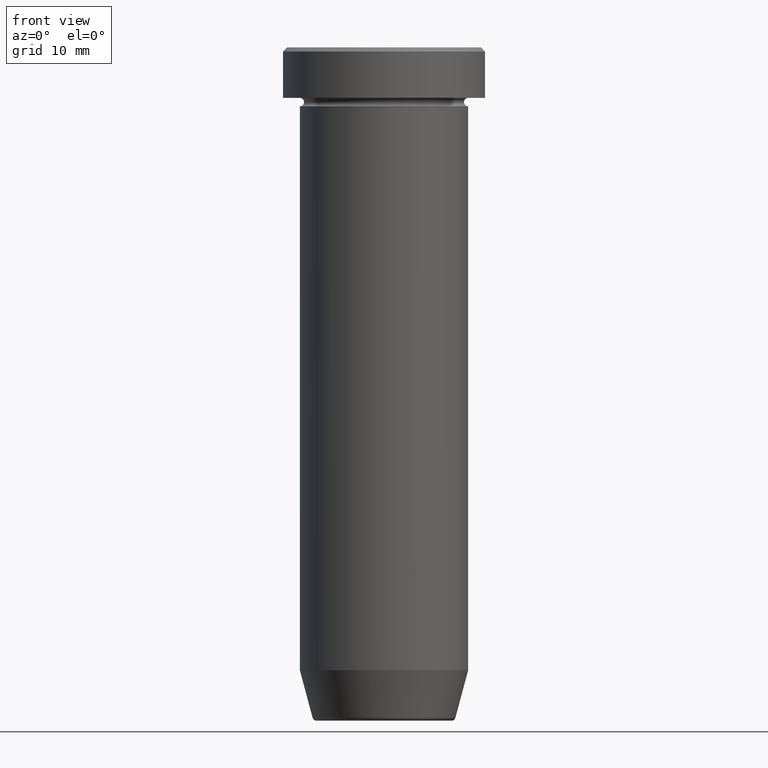
[diagram: clean part render]
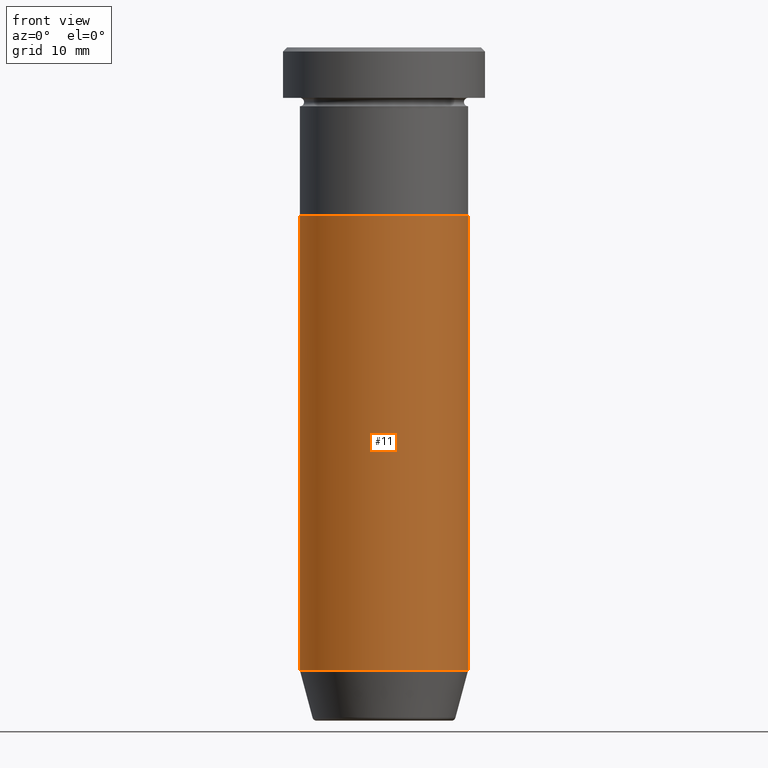
[diagram: same view with one face highlighted and labeled with its STEP entity id]
A machine part, front view. The second image highlights one B-rep face of the part: STEP entity #11.
In plain terms, the highlighted cylindrical surface (partial cylindrical patch) has radius 10 mm, axis along (-0, -0, 1).
Its self-contained STEP definition (entity closure, byte-faithful):
#3 = CARTESIAN_POINT ( 'NONE',  ( -9.999999999999998224, 1.224646799147353059E-15, 0.000000000000000000 ) ) ;
#10 = CARTESIAN_POINT ( 'NONE',  ( -9.999999999999998224, 1.224646799147353059E-15, -74.00000000000000000 ) ) ;
#11 = ADVANCED_FACE ( 'NONE', ( #256 ), #363, .T. ) ;
#13 = AXIS2_PLACEMENT_3D ( 'NONE', #532, #304, #534 ) ;
#42 = DIRECTION ( 'NONE',  ( -0.000000000000000000, -0.000000000000000000, 1.000000000000000000 ) ) ;
#44 = VECTOR ( 'NONE', #540, 1000.000000000000000 ) ;
#58 = EDGE_CURVE ( 'NONE', #580, #436, #470, .T. ) ;
#101 = CARTESIAN_POINT ( 'NONE',  ( 9.999999999999998224, 0.000000000000000000, -74.00000000000000000 ) ) ;
#127 = CARTESIAN_POINT ( 'NONE',  ( 9.999999999999998224, 0.000000000000000000, 0.000000000000000000 ) ) ;
#141 = DIRECTION ( 'NONE',  ( -0.000000000000000000, -0.000000000000000000, 1.000000000000000000 ) ) ;
#157 = EDGE_CURVE ( 'NONE', #400, #390, #563, .T. ) ;
#165 = LINE ( 'NONE', #127, #44 ) ;
#208 = DIRECTION ( 'NONE',  ( -0.000000000000000000, -0.000000000000000000, 1.000000000000000000 ) ) ;
#256 = FACE_OUTER_BOUND ( 'NONE', #399, .T. ) ;
#268 = CARTESIAN_POINT ( 'NONE',  ( -10.00000000000000000, 1.224646799147353256E-15, -20.00000000000000000 ) ) ;
#282 = LINE ( 'NONE', #3, #472 ) ;
#295 = ORIENTED_EDGE ( 'NONE', *, *, #387, .T. ) ;
#297 = ORIENTED_EDGE ( 'NONE', *, *, #157, .F. ) ;
#304 = DIRECTION ( 'NONE',  ( -0.000000000000000000, -0.000000000000000000, 1.000000000000000000 ) ) ;
#336 = AXIS2_PLACEMENT_3D ( 'NONE', #445, #42, #490 ) ;
#363 = CYLINDRICAL_SURFACE ( 'NONE', #13, 9.999999999999998224 ) ;
#387 = EDGE_CURVE ( 'NONE', #436, #390, #165, .T. ) ;
#390 = VERTEX_POINT ( 'NONE', #442 ) ;
#399 = EDGE_LOOP ( 'NONE', ( #594, #452, #295, #297 ) ) ;
#400 = VERTEX_POINT ( 'NONE', #268 ) ;
#428 = EDGE_CURVE ( 'NONE', #580, #400, #282, .T. ) ;
#436 = VERTEX_POINT ( 'NONE', #101 ) ;
#439 = CARTESIAN_POINT ( 'NONE',  ( 0.000000000000000000, 0.000000000000000000, -20.00000000000000000 ) ) ;
#442 = CARTESIAN_POINT ( 'NONE',  ( 10.00000000000000000, 0.000000000000000000, -20.00000000000000000 ) ) ;
#445 = CARTESIAN_POINT ( 'NONE',  ( 0.000000000000000000, 0.000000000000000000, -74.00000000000000000 ) ) ;
#452 = ORIENTED_EDGE ( 'NONE', *, *, #58, .T. ) ;
#463 = AXIS2_PLACEMENT_3D ( 'NONE', #439, #208, #575 ) ;
#470 = CIRCLE ( 'NONE', #336, 9.999999999999998224 ) ;
#472 = VECTOR ( 'NONE', #141, 1000.000000000000000 ) ;
#490 = DIRECTION ( 'NONE',  ( 1.000000000000000000, 0.000000000000000000, 0.000000000000000000 ) ) ;
#532 = CARTESIAN_POINT ( 'NONE',  ( 0.000000000000000000, 0.000000000000000000, 0.000000000000000000 ) ) ;
#534 = DIRECTION ( 'NONE',  ( 1.000000000000000000, 0.000000000000000000, 0.000000000000000000 ) ) ;
#540 = DIRECTION ( 'NONE',  ( -0.000000000000000000, -0.000000000000000000, 1.000000000000000000 ) ) ;
#563 = CIRCLE ( 'NONE', #463, 10.00000000000000000 ) ;
#575 = DIRECTION ( 'NONE',  ( 1.000000000000000000, 0.000000000000000000, 0.000000000000000000 ) ) ;
#580 = VERTEX_POINT ( 'NONE', #10 ) ;
#594 = ORIENTED_EDGE ( 'NONE', *, *, #428, .F. ) ;